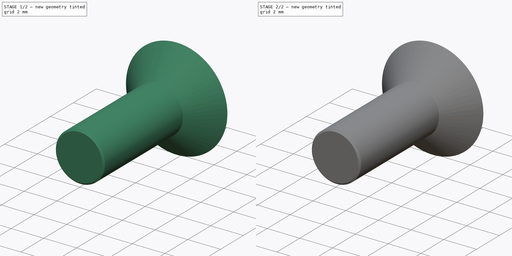
[diagram: build sequence overview — one tinted view per stage of 2, left to right]
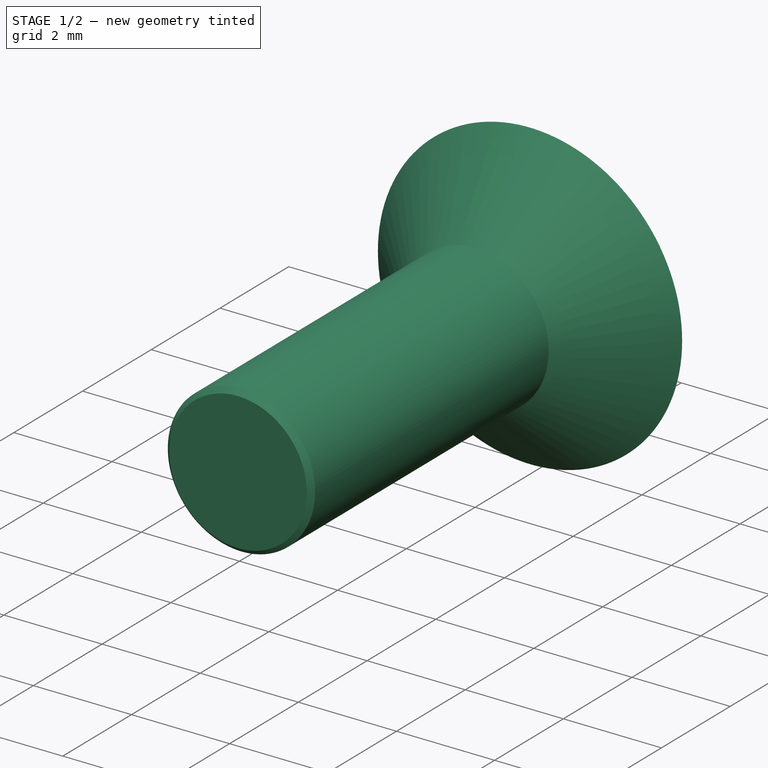
[diagram: stage 1 of 2 — iso view after this stage's code; geometry added in this stage tinted green]
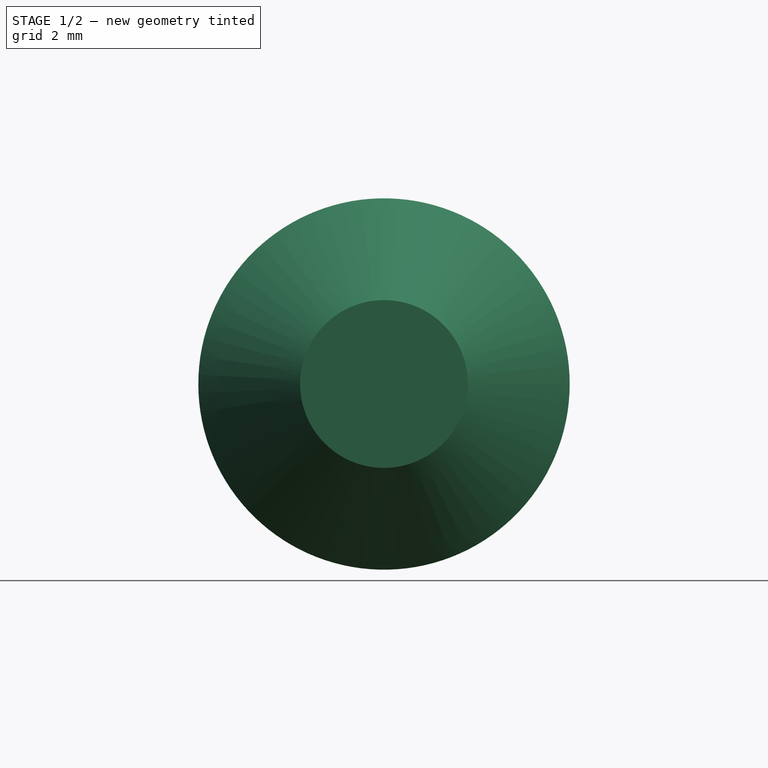
[diagram: stage 1 of 2 — front view after this stage's code; geometry added in this stage tinted green]
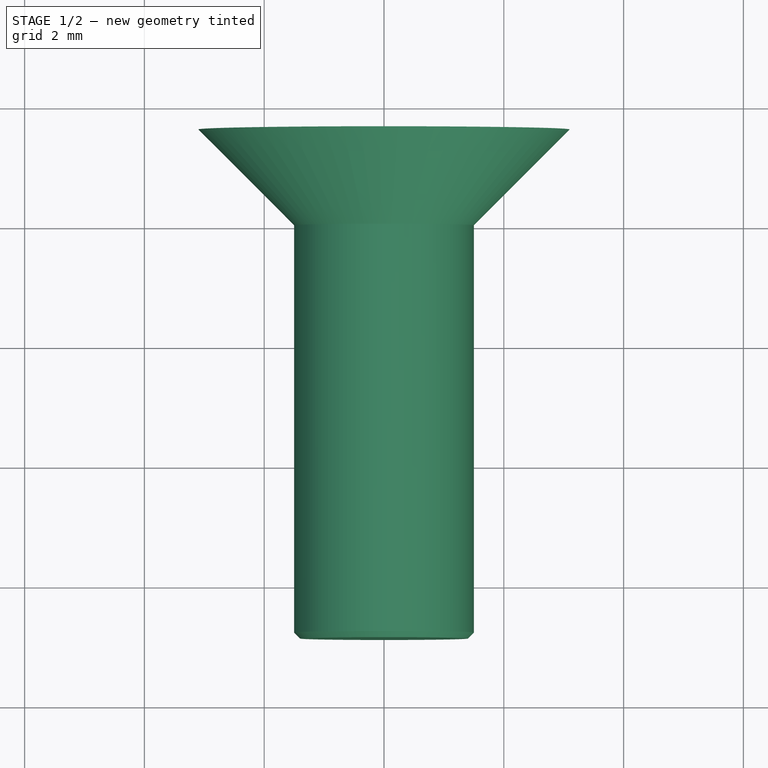
[diagram: stage 1 of 2 — top view after this stage's code; geometry added in this stage tinted green]
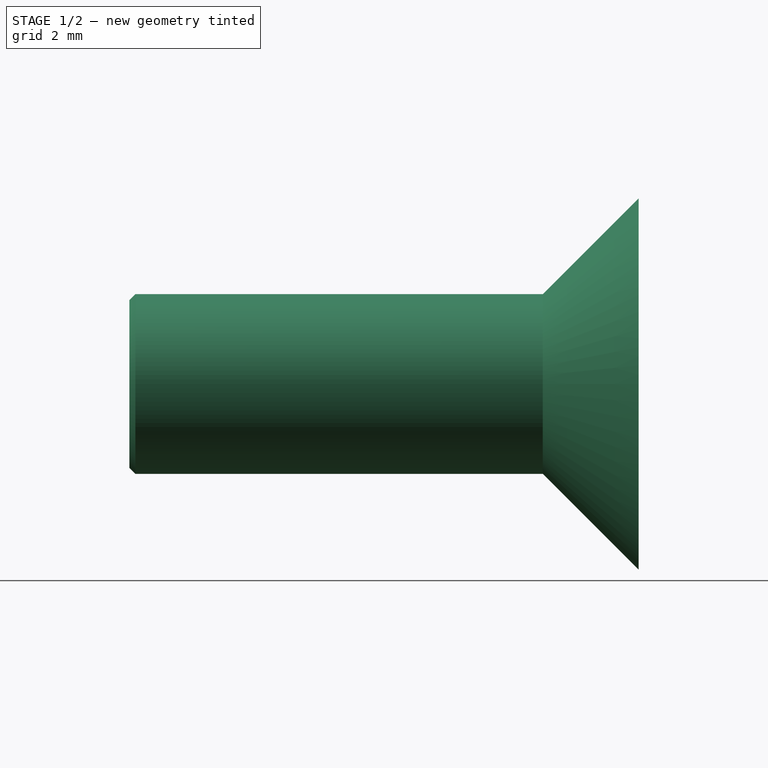
[diagram: stage 1 of 2 — right view after this stage's code; geometry added in this stage tinted green]
FCSTD DOCUMENT  (FreeCAD 0.17R13541 (Git))
Label: screw-M3-black
License: All rights reserved
LicenseURL: http://en.wikipedia.org/wiki/All_rights_reserved
objects: Sketcher::SketchObject×2, PartDesign::Revolution×1, PartDesign::Pocket×1, PartDesign::Body×1
note: 7 computed .brp shape members not serialized (recipe doc carries the construction recipe); baked Part::Feature solids carry a one-line shape summary decoded from their .brp

FEATURE [Sketcher::SketchObject] Sketch
  MapMode = 5
  Support = -> [XY_Plane]
  sketch-geometry (6):
    g0: LineSegment StartX=0 StartY=-6.9 StartZ=0 EndX=1.4 EndY=-6.9 EndZ=0
    g1: LineSegment StartX=1.5 StartY=-6.8 StartZ=0 EndX=1.5 EndY=0 EndZ=0
    g2: LineSegment StartX=1.5 StartY=0 StartZ=0 EndX=3.1 EndY=1.6 EndZ=0
    g3: LineSegment StartX=3.1 StartY=1.6 StartZ=0 EndX=0 EndY=1.6 EndZ=0
    g4: LineSegment StartX=0 StartY=1.6 StartZ=0 EndX=0 EndY=-6.9 EndZ=0
    g5: LineSegment StartX=1.4 StartY=-6.9 StartZ=0 EndX=1.5 EndY=-6.8 EndZ=0
  constraints (18):
    c: Coincident(g1,g2)
    c: PointOnObject(g3,g-2)
    c: PointOnObject(g0,g-2)
    c: Horizontal(g0)
    c: Vertical(g1)
    c: Horizontal(g3)
    c: Distance(g0,g3) = 8.5
    c: Coincident(g4,g3)
    c: Coincident(g4,g0)
    c: Distance(g1,g4) = 1.5
    c: Coincident(g0,g5)
    c: Coincident(g5,g1)
    c: Angle(g5,g0) = 2.35619
    c: Distance(g0) = 1.4
    c: Coincident(g3,g2)
    c: PointOnObject(g1,g-1)
    c: Angle(g2,g-1) = 2.35619
    c: Distance(g-1,g3) = 1.6
FEATURE [PartDesign::Revolution] Revolution
  Angle = 360
  Axis = (0,1,0)
  Base = (0,0,0)
  Profile = -> Sketch
  ReferenceAxis = -> Sketch [V_Axis]
  Reversed = true
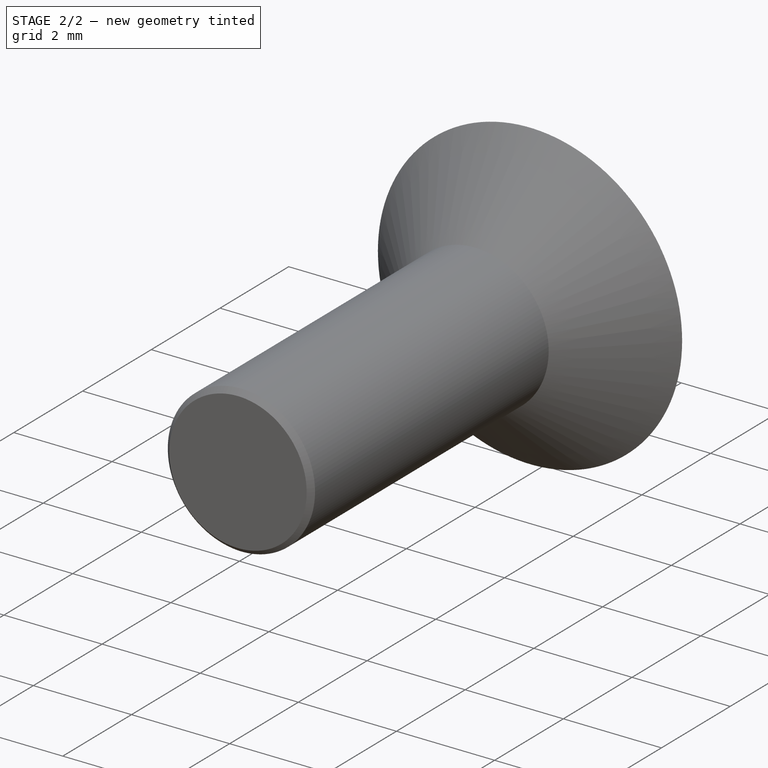
[diagram: stage 2 of 2 — iso view after this stage's code; geometry added in this stage tinted green]
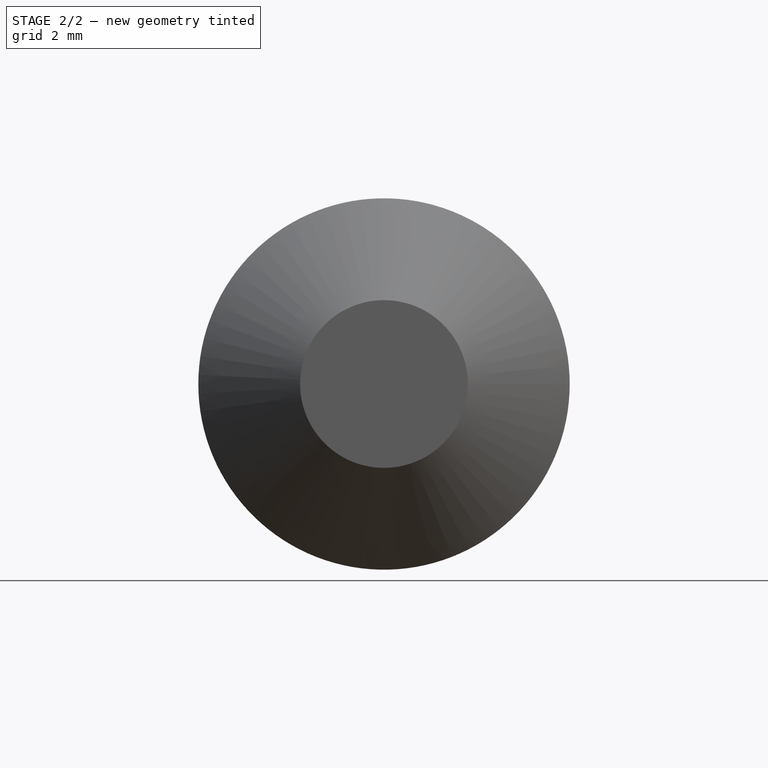
[diagram: stage 2 of 2 — front view after this stage's code; geometry added in this stage tinted green]
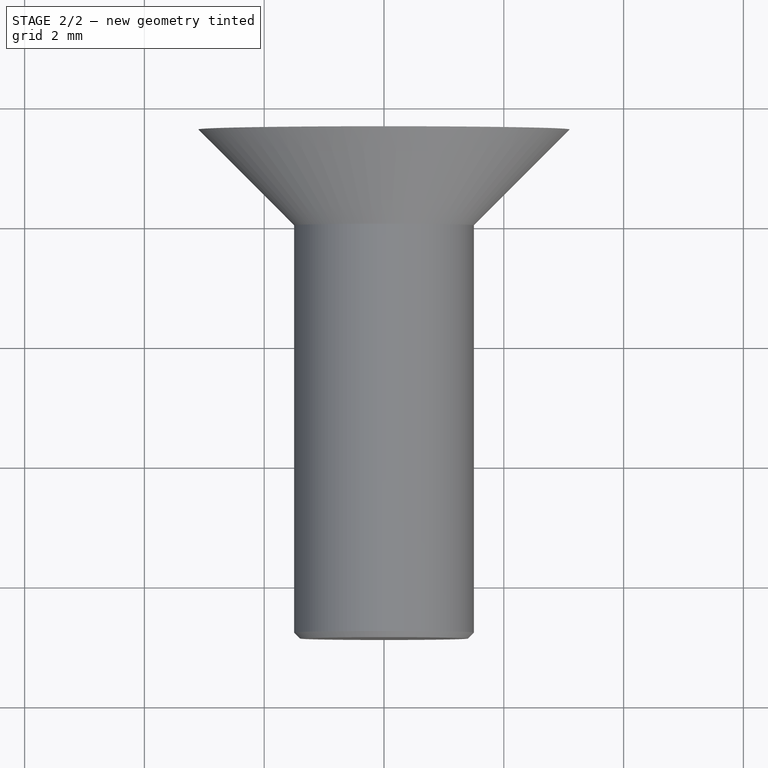
[diagram: stage 2 of 2 — top view after this stage's code; geometry added in this stage tinted green]
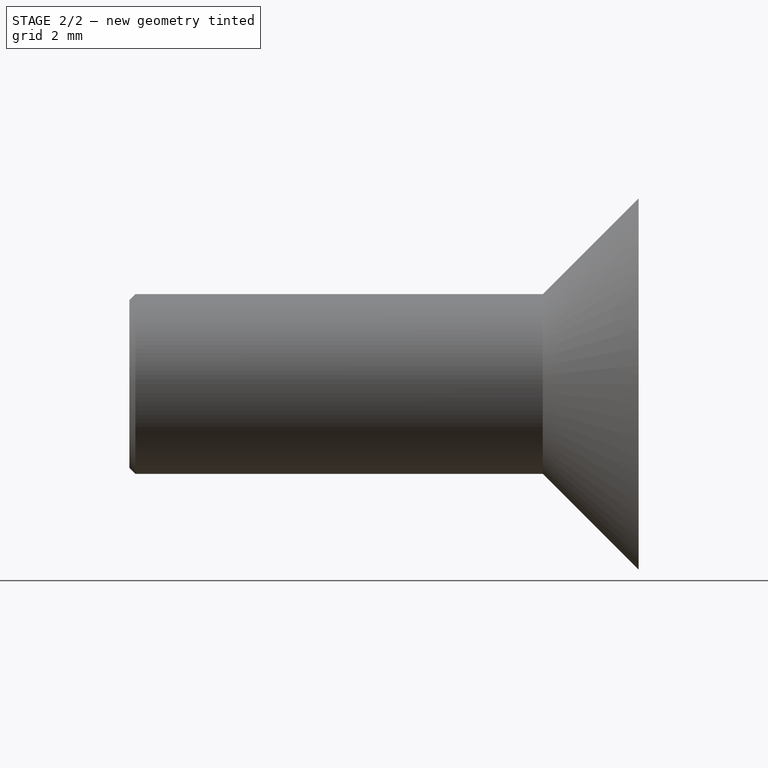
[diagram: stage 2 of 2 — right view after this stage's code; geometry added in this stage tinted green]
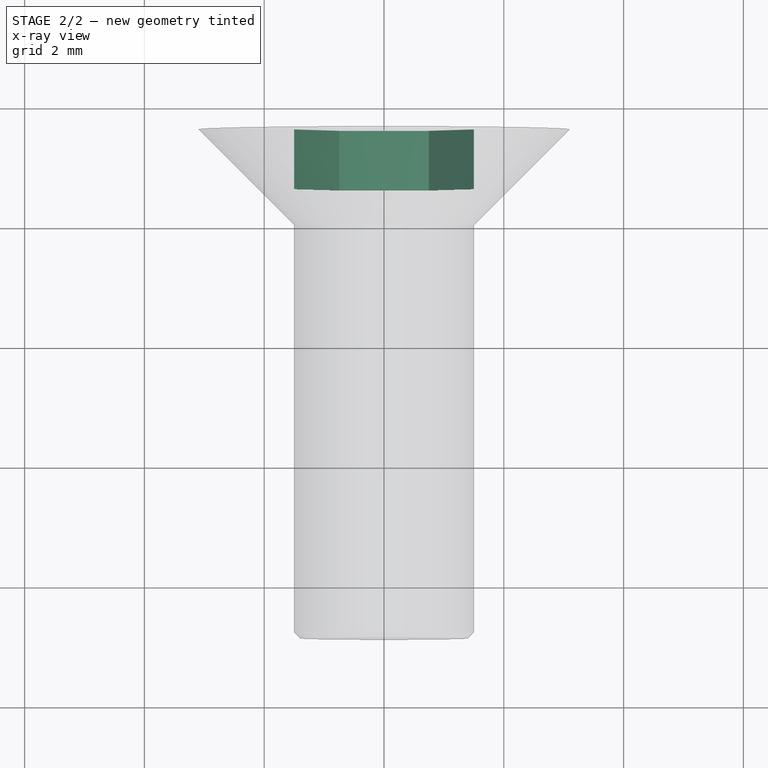
[diagram: stage 2 of 2 — x-ray composite at the top view; earlier geometry ghosted, this stage's added geometry solid]
FEATURE [Sketcher::SketchObject] Sketch001
  MapMode = 5
  Placement = pos=(0,1.6,0) rot=(0,0.707107,0.707107;3.14159rad)
  Support = -> [Revolution]
  sketch-geometry (7):
    g0: LineSegment StartX=0.75 StartY=-1.29904 StartZ=0 EndX=1.5 EndY=0 EndZ=0
    g1: LineSegment StartX=1.5 StartY=0 StartZ=0 EndX=0.75 EndY=1.29904 EndZ=0
    g2: LineSegment StartX=0.75 StartY=1.29904 StartZ=0 EndX=-0.75 EndY=1.29904 EndZ=0
    g3: LineSegment StartX=-0.75 StartY=1.29904 StartZ=0 EndX=-1.5 EndY=-3e-12 EndZ=0
    g4: LineSegment StartX=-1.5 StartY=-3e-12 StartZ=0 EndX=-0.75 EndY=-1.29904 EndZ=0
    g5: LineSegment StartX=-0.75 StartY=-1.29904 StartZ=0 EndX=0.75 EndY=-1.29904 EndZ=0
    g6: Circle [constr] CenterX=0 CenterY=0 CenterZ=0 NormalX=0 NormalY=0 NormalZ=1 AngleXU=0 Radius=1.5
  constraints (16):
    c: Coincident(g0,g1)
    c: Coincident(g1,g2)
    c: Coincident(g2,g3)
    c: Coincident(g3,g4)
    c: Coincident(g4,g5)
    c: Coincident(g5,g0)
    c: Equal(g0, g1-g5) x5
    c: PointOnObject(g0,g6)
    c: PointOnObject(g1,g6)
    c: PointOnObject(g2,g6)
    c: PointOnObject(g3,g6)
    c: PointOnObject(g4,g6)
    c: PointOnObject(g5,g6)
    c: Coincident(g6,g-1)
    c: PointOnObject(g0,g-1)
    c: Radius(g6) = 1.5
FEATURE [PartDesign::Pocket] Pocket
  BaseFeature = -> Revolution
  Length = 1
  Length2 = 100
  Profile = -> Sketch001
  Type = 0
FEATURE [PartDesign::Body] Body
  Group = -> [Sketch,Revolution,Sketch001,Pocket]
  Origin = -> Origin
  Tip = -> Pocket
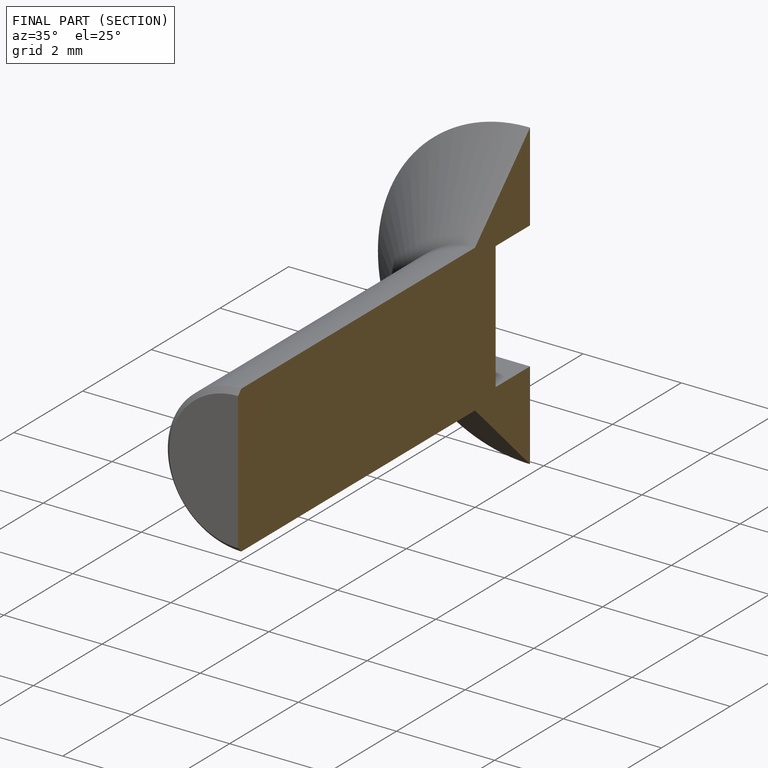
[diagram: finished part — half-section view (interior)]
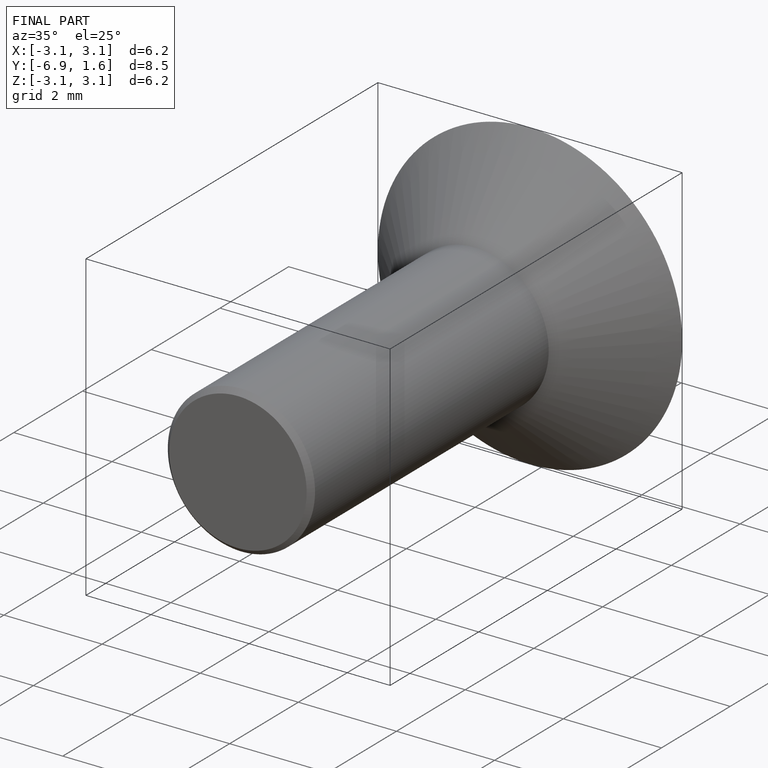
[diagram: finished part — iso view with bounding-box wireframe]
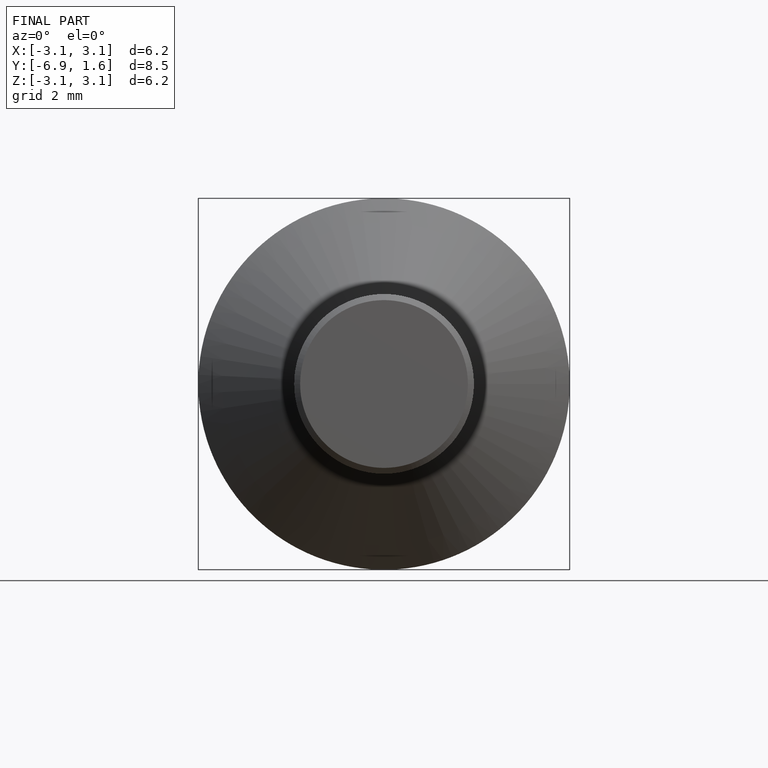
[diagram: finished part — front view with bounding-box wireframe]
